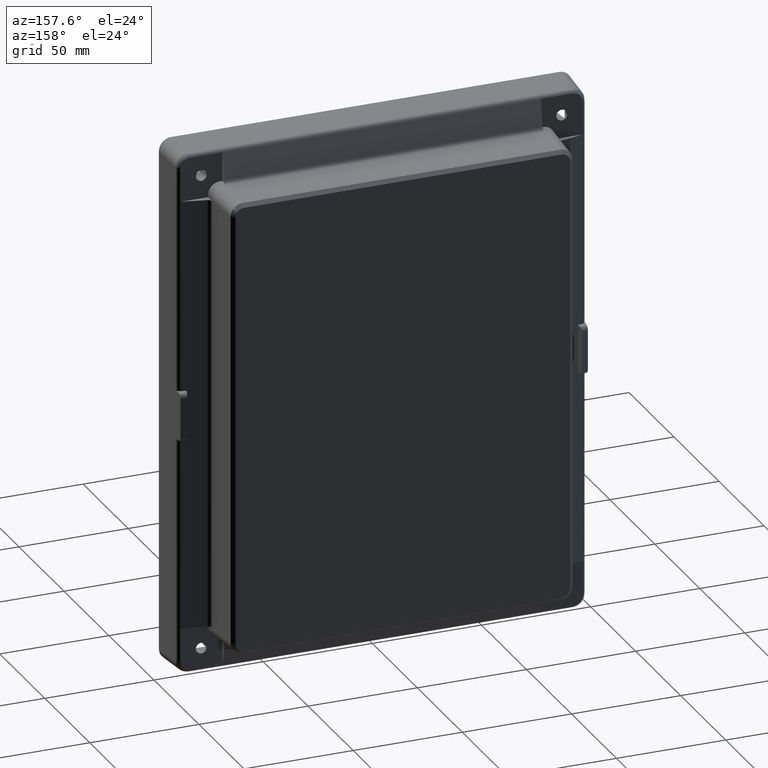
[diagram: clean part render]
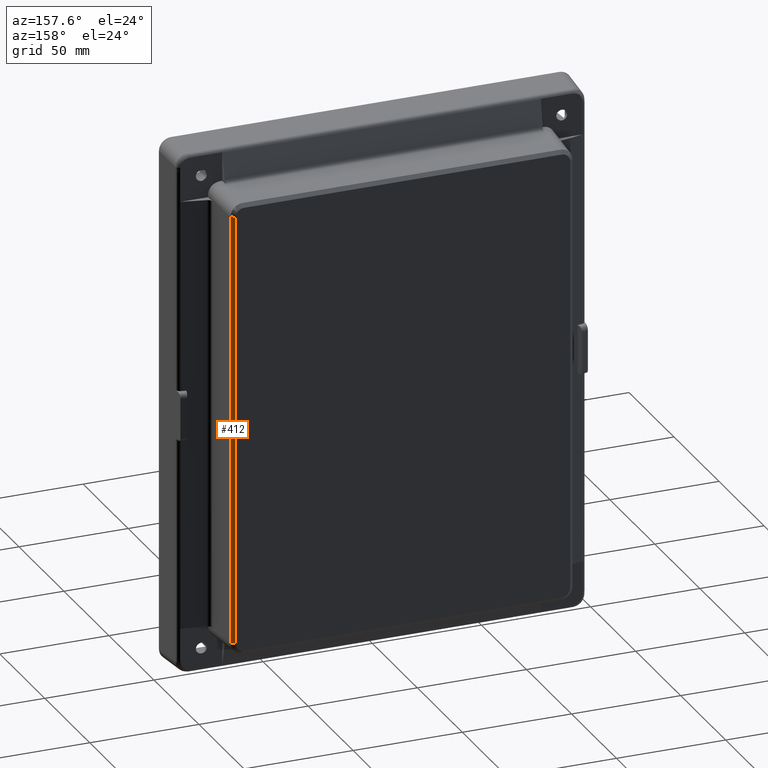
[diagram: same view with one face highlighted and labeled with its STEP entity id]
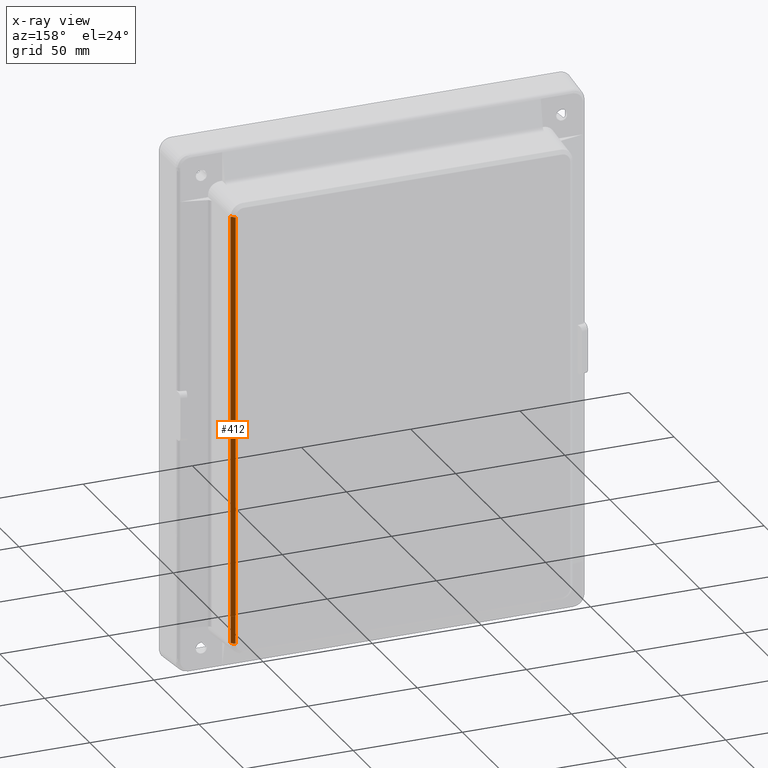
[diagram: x-ray of the same camera — body ghosted, the highlighted face saturated]
A machine part, auxiliary view. The second image highlights one B-rep face of the part: STEP entity #412.
The next image is the same camera in x-ray: the body ghosted, the highlighted face saturated — about 0% of this face is hidden behind the body in this view.
In plain terms, the highlighted planar face has unit normal (-0.6691, -0.7431, 0).
Its self-contained STEP definition (entity closure, byte-faithful):
#95 = CARTESIAN_POINT ( 'NONE',  ( 77.74209420925281200, 33.00137046524536500, 98.80417699759084400 ) ) ;
#198 = CARTESIAN_POINT ( 'NONE',  ( 76.63300375027621700, 34.00000000000000000, -98.72567306322643800 ) ) ;
#412 = ADVANCED_FACE ( 'NONE', ( #3847 ), #2907, .F. ) ;
#531 = VERTEX_POINT ( 'NONE', #5844 ) ;
#574 = ORIENTED_EDGE ( 'NONE', *, *, #4702, .F. ) ;
#626 = CARTESIAN_POINT ( 'NONE',  ( 76.63300375027621700, 34.00000000000000000, -98.80417699759085800 ) ) ;
#909 = CARTESIAN_POINT ( 'NONE',  ( 78.29663943874103900, 32.50205569786806600, -98.80417699759085800 ) ) ;
#1094 = CARTESIAN_POINT ( 'NONE',  ( 78.29663943874103900, 32.50205569786806600, -98.80417699759085800 ) ) ;
#1176 = EDGE_CURVE ( 'NONE', #6033, #531, #1680, .T. ) ;
#1219 = ORIENTED_EDGE ( 'NONE', *, *, #1176, .T. ) ;
#1680 = B_SPLINE_CURVE_WITH_KNOTS ( 'NONE', 3,
 ( #4971, #4477, #95, #4517 ),
 .UNSPECIFIED., .F., .F.,
 ( 4, 4 ),
 ( 0.0000000000000000000, 1.000000000000000000 ),
 .UNSPECIFIED. ) ;
#2125 = ORIENTED_EDGE ( 'NONE', *, *, #4011, .F. ) ;
#2258 = ORIENTED_EDGE ( 'NONE', *, *, #6192, .F. ) ;
#2424 = DIRECTION ( 'NONE',  ( 0.7431448254773918000, -0.6691306063588609000, 0.0000000000000000000 ) ) ;
#2689 = VERTEX_POINT ( 'NONE', #909 ) ;
#2907 = PLANE ( 'NONE',  #4841 ) ;
#3536 = LINE ( 'NONE', #6302, #3918 ) ;
#3847 = FACE_OUTER_BOUND ( 'NONE', #4047, .T. ) ;
#3918 = VECTOR ( 'NONE', #4871, 1000.000000000000000 ) ;
#3941 = VERTEX_POINT ( 'NONE', #5721 ) ;
#4011 = EDGE_CURVE ( 'NONE', #2689, #531, #3536, .T. ) ;
#4047 = EDGE_LOOP ( 'NONE', ( #1219, #2125, #574, #2258 ) ) ;
#4291 = CARTESIAN_POINT ( 'NONE',  ( 76.63300375027621700, 34.00000000000000000, -106.0000000000000300 ) ) ;
#4410 = CARTESIAN_POINT ( 'NONE',  ( 76.63300375027624500, 34.00000000000000000, 98.80417699759084400 ) ) ;
#4477 = CARTESIAN_POINT ( 'NONE',  ( 77.18754897976454300, 33.50068523262267900, 98.80417699759084400 ) ) ;
#4517 = CARTESIAN_POINT ( 'NONE',  ( 78.29663943874109600, 32.50205569786806600, 98.80417699759087200 ) ) ;
#4569 = VECTOR ( 'NONE', #5953, 1000.000000000000000 ) ;
#4702 = EDGE_CURVE ( 'NONE', #3941, #2689, #6011, .T. ) ;
#4841 = AXIS2_PLACEMENT_3D ( 'NONE', #4291, #6288, #2424 ) ;
#4871 = DIRECTION ( 'NONE',  ( 1.963837897332234700E-016, -1.288069395751124300E-033, 1.000000000000000000 ) ) ;
#4971 = CARTESIAN_POINT ( 'NONE',  ( 76.63300375027624500, 34.00000000000000000, 98.80417699759084400 ) ) ;
#5626 = LINE ( 'NONE', #198, #4569 ) ;
#5721 = CARTESIAN_POINT ( 'NONE',  ( 76.63300375027621700, 34.00000000000000000, -98.80417699759085800 ) ) ;
#5844 = CARTESIAN_POINT ( 'NONE',  ( 78.29663943874109600, 32.50205569786806600, 98.80417699759087200 ) ) ;
#5953 = DIRECTION ( 'NONE',  ( -1.963837897332234900E-016, 0.0000000000000000000, -1.000000000000000000 ) ) ;
#6011 = B_SPLINE_CURVE_WITH_KNOTS ( 'NONE', 1,
 ( #626, #1094 ),
 .UNSPECIFIED., .F., .F.,
 ( 2, 2 ),
 ( 0.0000000000000000000, 1.000000000000000000 ),
 .UNSPECIFIED. ) ;
#6033 = VERTEX_POINT ( 'NONE', #4410 ) ;
#6192 = EDGE_CURVE ( 'NONE', #6033, #3941, #5626, .T. ) ;
#6288 = DIRECTION ( 'NONE',  ( -0.6691306063588609000, -0.7431448254773918000, 1.314064043032428500E-016 ) ) ;
#6302 = CARTESIAN_POINT ( 'NONE',  ( 78.29663943874108200, 32.50205569786804500, 98.72567306322636700 ) ) ;